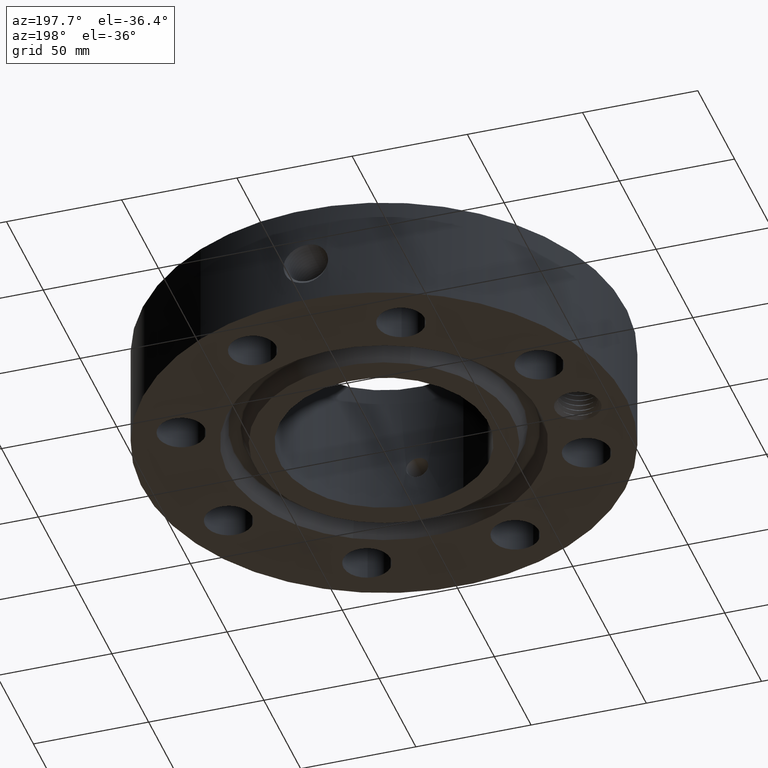
[diagram: clean part render]
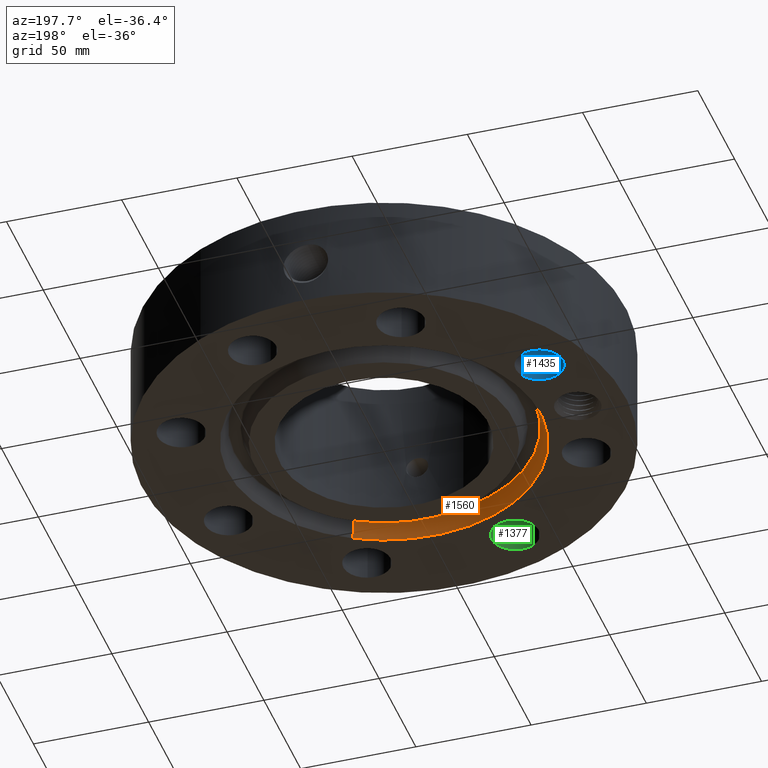
[diagram: same view with three faces highlighted in distinct colors, each labeled with its STEP entity id]
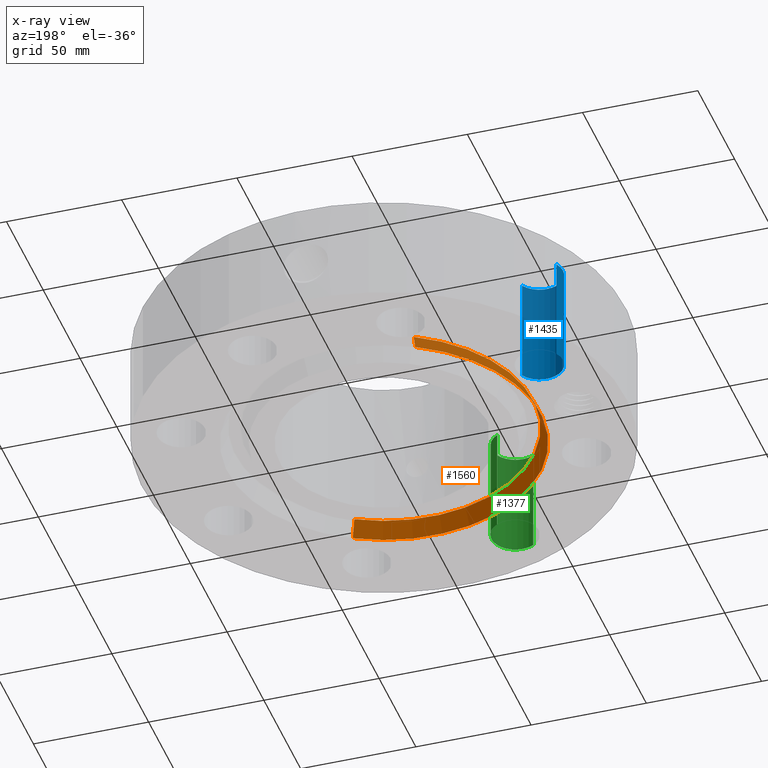
[diagram: x-ray of the same camera — body ghosted, the three highlighted faces saturated]
A machine part, auxiliary view with three faces highlighted in distinct colors.
The next image is the same camera in x-ray (body ghosted, the three faces saturated) — at least one of them is partly hidden behind the body in this view.
Their STEP definitions:

[orange] entity #1560 — the highlighted conical surface has half-angle 23 deg.
#368=AXIS2_PLACEMENT_3D('Circle Axis2P3D',#366,#367,$) ;
#1533=AXIS2_PLACEMENT_3D('Cone Axis2P3D',#1530,#1531,#1532) ;
#1544=AXIS2_PLACEMENT_3D('Circle Axis2P3D',#1542,#1543,$) ;
#366=CARTESIAN_POINT('Axis2P3D Location',(-2.79741234551E-016,0.,0.)) ;
#370=CARTESIAN_POINT('Vertex',(1.28102503916,-2.34490060538,0.)) ;
#372=CARTESIAN_POINT('Vertex',(-1.28102503916,2.34490060538,0.)) ;
#1530=CARTESIAN_POINT('Axis2P3D Location',(0.,0.,0.294112664984)) ;
#1535=CARTESIAN_POINT('Line Origine',(-1.25109847736,2.29012040146,0.147056332492)) ;
#1539=CARTESIAN_POINT('Vertex',(-1.22117191556,2.23534019754,0.294112664984)) ;
#1542=CARTESIAN_POINT('Axis2P3D Location',(0.,0.,0.294112664984)) ;
#1546=CARTESIAN_POINT('Vertex',(1.22117191556,-2.23534019754,0.294112664984)) ;
#1549=CARTESIAN_POINT('Line Origine',(1.25109847736,-2.29012040146,0.147056332492)) ;
#367=DIRECTION('Axis2P3D Direction',(0.,0.,-0.0393700787402)) ;
#1531=DIRECTION('Axis2P3D Direction',(-0.,-0.,-0.0393700787402)) ;
#1532=DIRECTION('Axis2P3D XDirection',(-0.0188750212049,0.0345504945626,0.)) ;
#1536=DIRECTION('Vector Direction',(-0.00737505833565,0.0134999537303,-0.0362403485611)) ;
#1543=DIRECTION('Axis2P3D Direction',(0.,0.,-0.0393700787402)) ;
#1550=DIRECTION('Vector Direction',(0.00737505833565,-0.0134999537303,-0.0362403485611)) ;
#1537=VECTOR('Line Direction',#1536,0.0393700787402) ;
#1551=VECTOR('Line Direction',#1550,0.0393700787402) ;
#1555=ORIENTED_EDGE('',*,*,#374,.T.) ;
#1556=ORIENTED_EDGE('',*,*,#1541,.T.) ;
#1557=ORIENTED_EDGE('',*,*,#1548,.T.) ;
#1558=ORIENTED_EDGE('',*,*,#1553,.F.) ;
#1560=ADVANCED_FACE('PartBody',(#1559),#1534,.F.) ;
#369=CIRCLE('generated circle',#368,2.67200000001) ;
#1545=CIRCLE('generated circle',#1544,2.5471565806) ;
#1534=CONICAL_SURFACE('Cone',#1533,2.5471565806,0.401425727959) ;
#374=EDGE_CURVE('',#371,#373,#369,.T.) ;
#1541=EDGE_CURVE('',#373,#1540,#1538,.F.) ;
#1548=EDGE_CURVE('',#1540,#1547,#1545,.F.) ;
#1553=EDGE_CURVE('',#371,#1547,#1552,.F.) ;
#1554=EDGE_LOOP('',(#1555,#1556,#1557,#1558)) ;
#1559=FACE_OUTER_BOUND('',#1554,.T.) ;
#1538=LINE('Line',#1535,#1537) ;
#1552=LINE('Line',#1549,#1551) ;
#371=VERTEX_POINT('',#370) ;
#373=VERTEX_POINT('',#372) ;
#1540=VERTEX_POINT('',#1539) ;
#1547=VERTEX_POINT('',#1546) ;

[blue] entity #1435 — the highlighted cylindrical surface (edge-blend (fillet) strip) has radius 10.287 mm, axis along (-0, 0, -1).
#296=AXIS2_PLACEMENT_3D('Circle Axis2P3D',#294,#295,$) ;
#640=AXIS2_PLACEMENT_3D('Circle Axis2P3D',#638,#639,$) ;
#1417=AXIS2_PLACEMENT_3D('Cylinder Axis2P3D',#1414,#1415,#1416) ;
#294=CARTESIAN_POINT('Axis2P3D Location',(-3.05804125262,1.26668216113,0.)) ;
#298=CARTESIAN_POINT('Vertex',(-2.70262031506,1.072514818,0.)) ;
#300=CARTESIAN_POINT('Vertex',(-3.41346219019,1.46084950427,0.)) ;
#633=CARTESIAN_POINT('Vertex',(-3.41346219019,1.46084950427,1.81300000001)) ;
#635=CARTESIAN_POINT('Vertex',(-2.70262031506,1.072514818,1.81300000001)) ;
#638=CARTESIAN_POINT('Axis2P3D Location',(-3.05804125262,1.26668216113,1.81300000001)) ;
#1414=CARTESIAN_POINT('Axis2P3D Location',(-3.05804125262,1.26668216113,1.80906299213)) ;
#1419=CARTESIAN_POINT('Line Origine',(-2.70262031506,1.072514818,0.906500000004)) ;
#1424=CARTESIAN_POINT('Line Origine',(-3.41346219019,1.46084950427,0.906500000004)) ;
#295=DIRECTION('Axis2P3D Direction',(0.,0.,-0.0393700787402)) ;
#639=DIRECTION('Axis2P3D Direction',(0.,0.,-0.0393700787402)) ;
#1415=DIRECTION('Axis2P3D Direction',(-0.,0.,-0.0393700787402)) ;
#1416=DIRECTION('Axis2P3D XDirection',(-0.0345504945626,0.0188750212049,0.)) ;
#1420=DIRECTION('Vector Direction',(0.,0.,-0.0393700787402)) ;
#1425=DIRECTION('Vector Direction',(0.,0.,-0.0393700787402)) ;
#1421=VECTOR('Line Direction',#1420,0.0393700787402) ;
#1426=VECTOR('Line Direction',#1425,0.0393700787402) ;
#1430=ORIENTED_EDGE('',*,*,#1423,.F.) ;
#1431=ORIENTED_EDGE('',*,*,#302,.T.) ;
#1432=ORIENTED_EDGE('',*,*,#1428,.T.) ;
#1433=ORIENTED_EDGE('',*,*,#642,.F.) ;
#1435=ADVANCED_FACE('PartBody',(#1434),#1418,.F.) ;
#297=CIRCLE('generated circle',#296,0.405000000002) ;
#641=CIRCLE('generated circle',#640,0.405000000002) ;
#1418=CYLINDRICAL_SURFACE('generated cylinder',#1417,0.405000000002) ;
#302=EDGE_CURVE('',#299,#301,#297,.T.) ;
#642=EDGE_CURVE('',#636,#634,#641,.T.) ;
#1423=EDGE_CURVE('',#299,#636,#1422,.F.) ;
#1428=EDGE_CURVE('',#301,#634,#1427,.F.) ;
#1429=EDGE_LOOP('',(#1430,#1431,#1432,#1433)) ;
#1434=FACE_OUTER_BOUND('',#1429,.T.) ;
#1422=LINE('Line',#1419,#1421) ;
#1427=LINE('Line',#1424,#1426) ;
#299=VERTEX_POINT('',#298) ;
#301=VERTEX_POINT('',#300) ;
#634=VERTEX_POINT('',#633) ;
#636=VERTEX_POINT('',#635) ;

[green] entity #1377 — the highlighted cylindrical surface (edge-blend (fillet) strip) has radius 10.287 mm, axis along (0, -0, -1).
#260=AXIS2_PLACEMENT_3D('Circle Axis2P3D',#258,#259,$) ;
#604=AXIS2_PLACEMENT_3D('Circle Axis2P3D',#602,#603,$) ;
#1359=AXIS2_PLACEMENT_3D('Cylinder Axis2P3D',#1356,#1357,#1358) ;
#258=CARTESIAN_POINT('Axis2P3D Location',(-1.26668216113,-3.05804125262,0.)) ;
#262=CARTESIAN_POINT('Vertex',(-1.072514818,-2.70262031506,0.)) ;
#264=CARTESIAN_POINT('Vertex',(-1.46084950427,-3.41346219019,0.)) ;
#597=CARTESIAN_POINT('Vertex',(-1.46084950427,-3.41346219019,1.81300000001)) ;
#599=CARTESIAN_POINT('Vertex',(-1.072514818,-2.70262031506,1.81300000001)) ;
#602=CARTESIAN_POINT('Axis2P3D Location',(-1.26668216113,-3.05804125262,1.81300000001)) ;
#1356=CARTESIAN_POINT('Axis2P3D Location',(-1.26668216113,-3.05804125262,1.80906299213)) ;
#1361=CARTESIAN_POINT('Line Origine',(-1.072514818,-2.70262031506,0.906500000004)) ;
#1366=CARTESIAN_POINT('Line Origine',(-1.46084950427,-3.41346219019,0.906500000004)) ;
#259=DIRECTION('Axis2P3D Direction',(0.,0.,-0.0393700787402)) ;
#603=DIRECTION('Axis2P3D Direction',(0.,0.,-0.0393700787402)) ;
#1357=DIRECTION('Axis2P3D Direction',(0.,-0.,-0.0393700787402)) ;
#1358=DIRECTION('Axis2P3D XDirection',(-0.0188750212049,-0.0345504945626,0.)) ;
#1362=DIRECTION('Vector Direction',(0.,0.,-0.0393700787402)) ;
#1367=DIRECTION('Vector Direction',(0.,0.,-0.0393700787402)) ;
#1363=VECTOR('Line Direction',#1362,0.0393700787402) ;
#1368=VECTOR('Line Direction',#1367,0.0393700787402) ;
#1372=ORIENTED_EDGE('',*,*,#1365,.F.) ;
#1373=ORIENTED_EDGE('',*,*,#266,.T.) ;
#1374=ORIENTED_EDGE('',*,*,#1370,.T.) ;
#1375=ORIENTED_EDGE('',*,*,#606,.F.) ;
#1377=ADVANCED_FACE('PartBody',(#1376),#1360,.F.) ;
#261=CIRCLE('generated circle',#260,0.405000000002) ;
#605=CIRCLE('generated circle',#604,0.405000000002) ;
#1360=CYLINDRICAL_SURFACE('generated cylinder',#1359,0.405000000002) ;
#266=EDGE_CURVE('',#263,#265,#261,.T.) ;
#606=EDGE_CURVE('',#600,#598,#605,.T.) ;
#1365=EDGE_CURVE('',#263,#600,#1364,.F.) ;
#1370=EDGE_CURVE('',#265,#598,#1369,.F.) ;
#1371=EDGE_LOOP('',(#1372,#1373,#1374,#1375)) ;
#1376=FACE_OUTER_BOUND('',#1371,.T.) ;
#1364=LINE('Line',#1361,#1363) ;
#1369=LINE('Line',#1366,#1368) ;
#263=VERTEX_POINT('',#262) ;
#265=VERTEX_POINT('',#264) ;
#598=VERTEX_POINT('',#597) ;
#600=VERTEX_POINT('',#599) ;